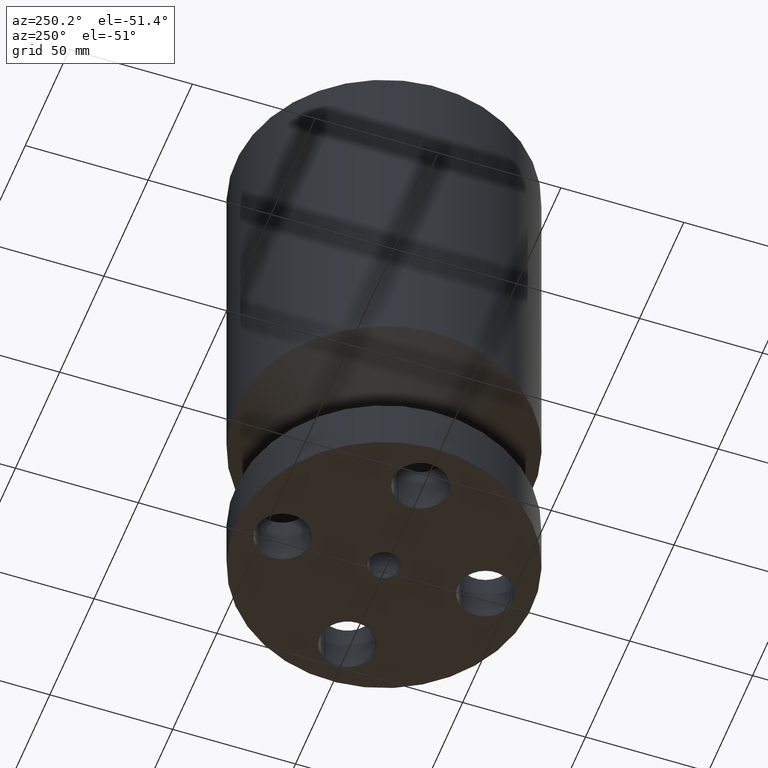
[diagram: clean part render]
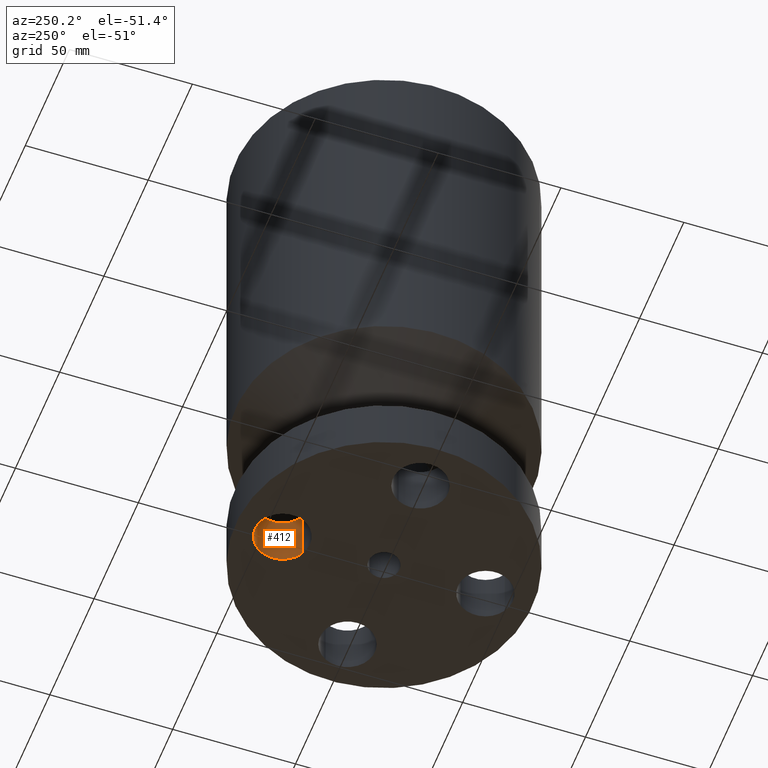
[diagram: same view with one face highlighted and labeled with its STEP entity id]
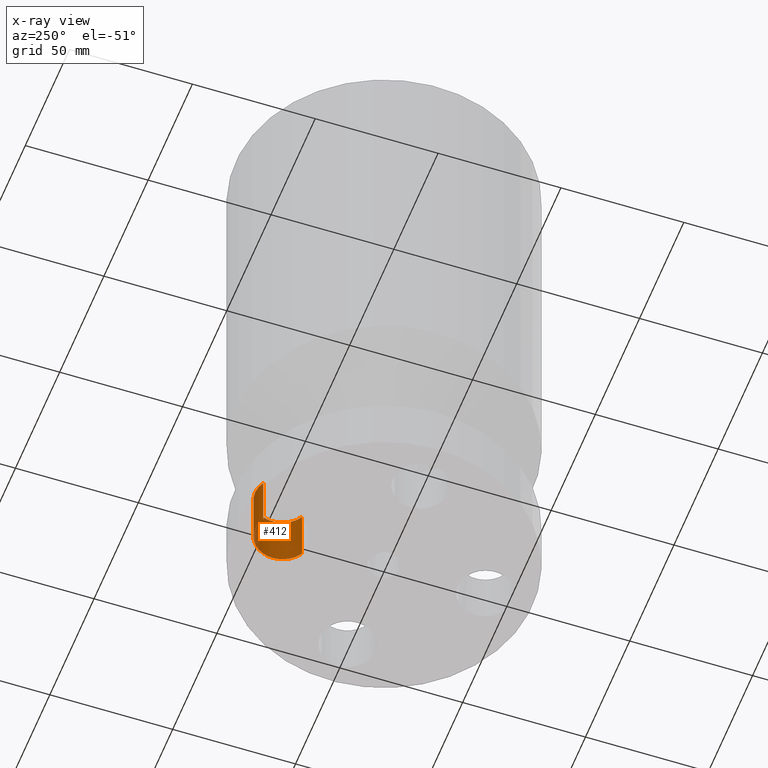
[diagram: x-ray of the same camera — body ghosted, the highlighted face saturated]
A machine part, auxiliary view. The second image highlights one B-rep face of the part: STEP entity #412.
The next image is the same camera in x-ray: the body ghosted, the highlighted face saturated — about 0% of this face is hidden behind the body in this view.
In plain terms, the highlighted cylindrical surface (edge-blend (fillet) strip) has radius 11.176 mm, axis along (0, 0, 1).
Its self-contained STEP definition (entity closure, byte-faithful):
#172=AXIS2_PLACEMENT_3D('Circle Axis2P3D',#170,#171,$) ;
#385=AXIS2_PLACEMENT_3D('Cylinder Axis2P3D',#382,#383,#384) ;
#396=AXIS2_PLACEMENT_3D('Circle Axis2P3D',#394,#395,$) ;
#165=CARTESIAN_POINT('Vertex',(0.210947236987,1.23886367277,0.880000000004)) ;
#167=CARTESIAN_POINT('Vertex',(-0.210947236987,2.01113632724,0.880000000004)) ;
#170=CARTESIAN_POINT('Axis2P3D Location',(-3.49676543189E-016,1.62500000001,0.880000000004)) ;
#382=CARTESIAN_POINT('Axis2P3D Location',(-2.98507657293E-016,1.62500000001,0.00393700787402)) ;
#387=CARTESIAN_POINT('Line Origine',(-0.210947236987,2.01113632724,0.440000000002)) ;
#391=CARTESIAN_POINT('Vertex',(-0.210947236987,2.01113632724,2.2401153548E-016)) ;
#394=CARTESIAN_POINT('Axis2P3D Location',(-2.98507657293E-016,1.62500000001,0.)) ;
#398=CARTESIAN_POINT('Vertex',(0.210947236987,1.23886367277,2.2401153548E-016)) ;
#401=CARTESIAN_POINT('Line Origine',(0.210947236987,1.23886367277,0.440000000002)) ;
#171=DIRECTION('Axis2P3D Direction',(0.,0.,-0.0393700787402)) ;
#383=DIRECTION('Axis2P3D Direction',(0.,0.,0.0393700787402)) ;
#384=DIRECTION('Axis2P3D XDirection',(-0.0188750212049,0.0345504945626,0.)) ;
#388=DIRECTION('Vector Direction',(0.,0.,0.0393700787402)) ;
#395=DIRECTION('Axis2P3D Direction',(0.,0.,0.0393700787402)) ;
#402=DIRECTION('Vector Direction',(0.,0.,0.0393700787402)) ;
#389=VECTOR('Line Direction',#388,0.0393700787402) ;
#403=VECTOR('Line Direction',#402,0.0393700787402) ;
#407=ORIENTED_EDGE('',*,*,#393,.T.) ;
#408=ORIENTED_EDGE('',*,*,#400,.T.) ;
#409=ORIENTED_EDGE('',*,*,#405,.F.) ;
#410=ORIENTED_EDGE('',*,*,#174,.F.) ;
#412=ADVANCED_FACE('PartBody',(#411),#386,.F.) ;
#173=CIRCLE('generated circle',#172,0.440000000002) ;
#397=CIRCLE('generated circle',#396,0.440000000002) ;
#386=CYLINDRICAL_SURFACE('generated cylinder',#385,0.440000000002) ;
#174=EDGE_CURVE('',#168,#166,#173,.T.) ;
#393=EDGE_CURVE('',#168,#392,#390,.F.) ;
#400=EDGE_CURVE('',#392,#399,#397,.F.) ;
#405=EDGE_CURVE('',#166,#399,#404,.F.) ;
#406=EDGE_LOOP('',(#407,#408,#409,#410)) ;
#411=FACE_OUTER_BOUND('',#406,.T.) ;
#390=LINE('Line',#387,#389) ;
#404=LINE('Line',#401,#403) ;
#166=VERTEX_POINT('',#165) ;
#168=VERTEX_POINT('',#167) ;
#392=VERTEX_POINT('',#391) ;
#399=VERTEX_POINT('',#398) ;